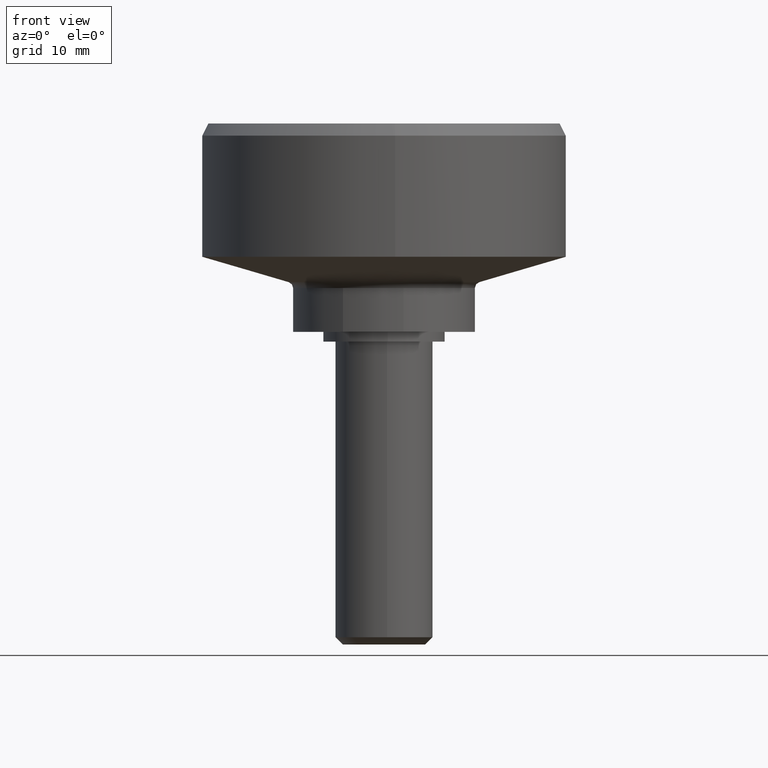
[diagram: clean part render]
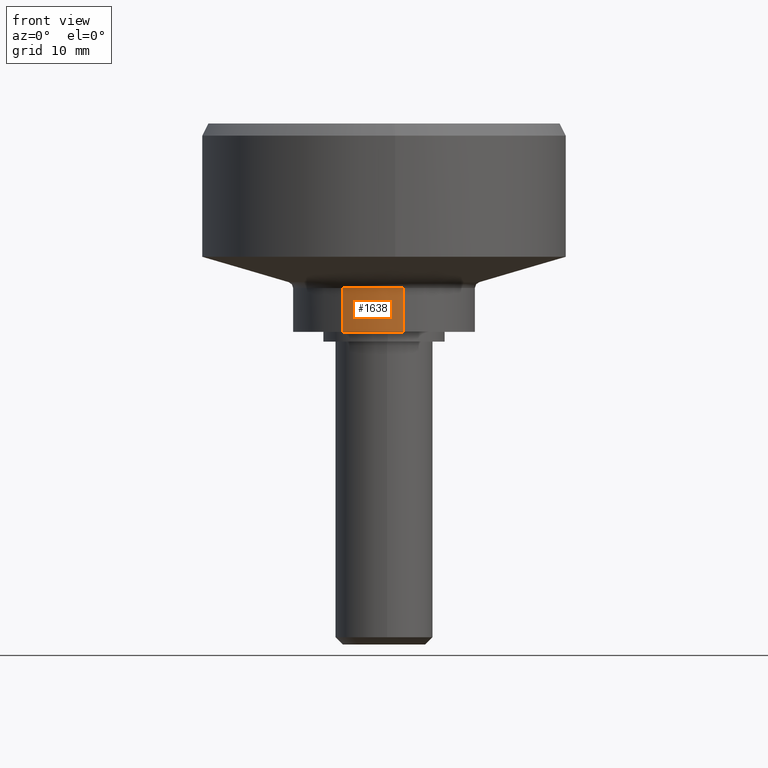
[diagram: same view with one face highlighted and labeled with its STEP entity id]
A machine part, front view. The second image highlights one B-rep face of the part: STEP entity #1638.
In plain terms, the highlighted face is a freeform B-spline surface patch.
Its self-contained STEP definition (entity closure, byte-faithful):
#1449=CARTESIAN_POINT('',(-3.382609773205561,-6.693874148965321,4.425598000054274));
#1450=VERTEX_POINT('',#1449);
#1513=CARTESIAN_POINT('',(1.623292744224767,-7.322221020054451,4.425597999999832));
#1514=VERTEX_POINT('',#1513);
#1528=CARTESIAN_POINT('',(1.623292796705833,-7.322221008419745,0.800002999999990));
#1529=VERTEX_POINT('',#1528);
#1530=CARTESIAN_POINT('',(1.623292744224767,-7.322221020054451,4.425597999999832));
#1531=CARTESIAN_POINT('',(1.623292796705833,-7.322221008419745,0.800002999999990));
#1532=QUASI_UNIFORM_CURVE('',1,(#1530,#1531),.UNSPECIFIED.,.F.,.U.);
#1533=EDGE_CURVE('',#1514,#1529,#1532,.T.);
#1567=CARTESIAN_POINT('',(-3.382609265575411,-6.693874405485421,0.800002999999990));
#1568=VERTEX_POINT('',#1567);
#1582=CARTESIAN_POINT('',(-3.382609773205561,-6.693874148965321,4.425598000054274));
#1583=CARTESIAN_POINT('',(-3.382609265575411,-6.693874405485421,0.800002999999990));
#1584=QUASI_UNIFORM_CURVE('',1,(#1582,#1583),.UNSPECIFIED.,.F.,.U.);
#1585=EDGE_CURVE('',#1450,#1568,#1584,.T.);
#1590=CARTESIAN_POINT('',(1.623297104535771,-7.322220053399498,4.516237875365751));
#1591=CARTESIAN_POINT('',(-0.991867253741442,-7.901988033563606,4.516237875365751));
#1592=CARTESIAN_POINT('',(-3.382614201223764,-6.693871911358874,4.516237875365752));
#1593=CARTESIAN_POINT('',(1.623297104535771,-7.322220053399498,0.707097128115846));
#1594=CARTESIAN_POINT('',(-0.991867253741442,-7.901988033563606,0.707097128115846));
#1595=CARTESIAN_POINT('',(-3.382614201223764,-6.693871911358874,0.707097128115846));
#1603=(BOUNDED_SURFACE()B_SPLINE_SURFACE(2,1,((#1590,#1593),(#1591,#1594),(#1592,#1595)),.UNSPECIFIED.,.F.,.F.,.U.)B_SPLINE_SURFACE_WITH_KNOTS((3,3),(2,2),(0.0,5.454143746330534),(0.0,3.809140747249905),.UNSPECIFIED.)GEOMETRIC_REPRESENTATION_ITEM()RATIONAL_B_SPLINE_SURFACE(((1.0,1.0),(0.871126983722081,0.871126983722081),(0.855662221768731,0.855662221768731)))REPRESENTATION_ITEM('')SURFACE());
#1604=CARTESIAN_POINT('',(1.623292744224767,-7.322221020054451,4.425597999999832));
#1605=CARTESIAN_POINT('',(0.821381327752060,-7.499999999999999,4.425597999999896));
#1606=CARTESIAN_POINT('',(0.0,-7.500000000000000,4.425597999999895));
#1607=CARTESIAN_POINT('',(-1.787360732720821,-7.500000000000001,4.425597999999896));
#1608=CARTESIAN_POINT('',(-3.382609773205562,-6.693874148965321,4.425598000054274));
#1616=(BOUNDED_CURVE()B_SPLINE_CURVE(2,(#1604,#1605,#1606,#1607,#1608),.UNSPECIFIED.,.F.,.U.)B_SPLINE_CURVE_WITH_KNOTS((3,2,3),(0.712959982815623,0.750000000000000,0.826686975630002),.UNSPECIFIED.)CURVE()GEOMETRIC_REPRESENTATION_ITEM()RATIONAL_B_SPLINE_CURVE((0.926068677038772,0.956604920567849,1.0,0.910155619466639,0.875430389496914))REPRESENTATION_ITEM(''));
#1617=EDGE_CURVE('',#1514,#1450,#1616,.T.);
#1618=ORIENTED_EDGE('',*,*,#1617,.T.);
#1619=ORIENTED_EDGE('',*,*,#1585,.T.);
#1620=CARTESIAN_POINT('',(1.623292796705833,-7.322221008419745,0.800002999999990));
#1621=CARTESIAN_POINT('',(0.821381354952068,-7.500000000000000,0.800002999999990));
#1622=CARTESIAN_POINT('',(0.0,-7.500000000000000,0.800002999999990));
#1623=CARTESIAN_POINT('',(-1.787360432188609,-7.500000000000000,0.800002999999990));
#1624=CARTESIAN_POINT('',(-3.382609265575411,-6.693874405485420,0.800002999999990));
#1632=(BOUNDED_CURVE()B_SPLINE_CURVE(2,(#1620,#1621,#1622,#1623,#1624),.UNSPECIFIED.,.F.,.U.)B_SPLINE_CURVE_WITH_KNOTS((3,2,3),(0.712959981642272,0.750000000000000,0.826686963894111),.UNSPECIFIED.)CURVE()GEOMETRIC_REPRESENTATION_ITEM()RATIONAL_B_SPLINE_CURVE((0.926068675104122,0.956604919193183,1.0,0.910155633216092,0.875430400125358))REPRESENTATION_ITEM(''));
#1633=EDGE_CURVE('',#1529,#1568,#1632,.T.);
#1634=ORIENTED_EDGE('',*,*,#1633,.F.);
#1635=ORIENTED_EDGE('',*,*,#1533,.F.);
#1636=EDGE_LOOP('',(#1618,#1619,#1634,#1635));
#1637=FACE_OUTER_BOUND('',#1636,.T.);
#1638=ADVANCED_FACE('',(#1637),#1603,.T.);